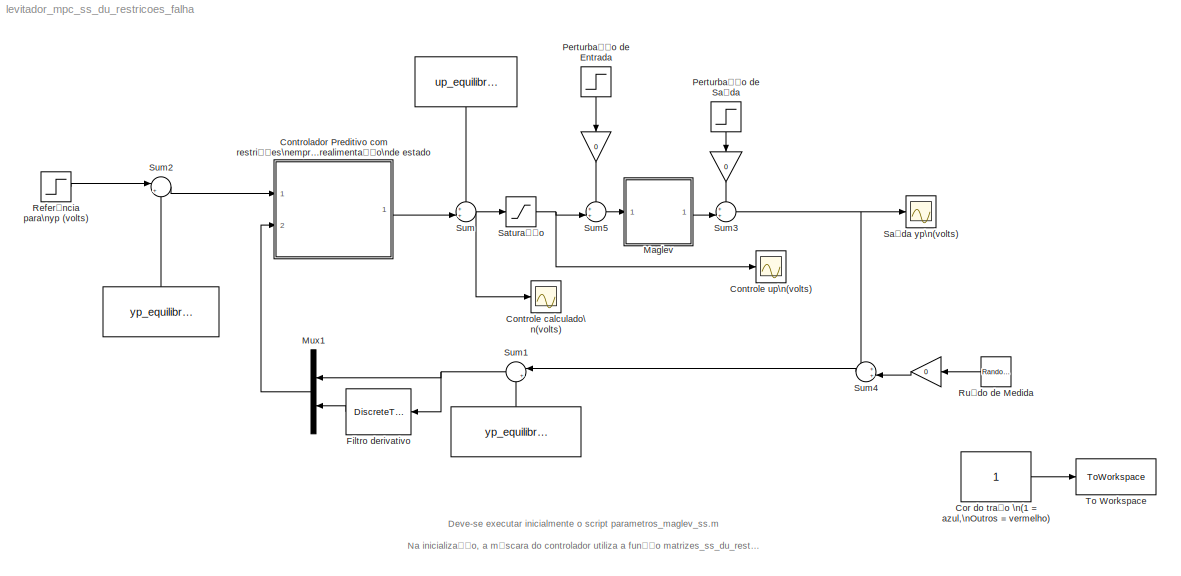
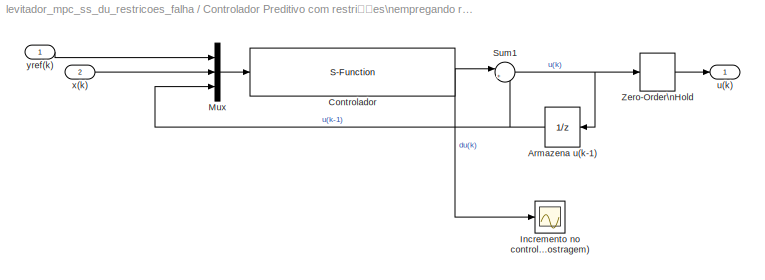
MODEL levitador_mpc_ss_du_restricoes_falha
KIND model
CONFIG StopFcn = if color == 1, color_plot = 'b';\nelse color_plot = 'r';\nend\nfigure(1)\nplot(up_calc.time,up_calc.signals.values,color_plot)\nxlabel('Tempo (s)')\nylabel('Controle u_p calculado (V)')\ngrid on\nylim([2 4])\nhold on
BLOCK [Constant]  
  SID = 42
  Value = yp_equilibrio
BLOCK [Constant]   
  SID = 43
  Value = yp_equilibrio
BLOCK [Constant]    
  SID = 41
  Value = up_equilibrio
BLOCK [Gain]      
  Gain = 0
  OutDataTypeStr = Inherit: Inherit via internal rule
  ParamDataTypeStr = Inherit: Inherit via internal rule
  SID = 62
  SaturateOnIntegerOverflow = off
BLOCK [Gain]         
  Gain = 0
  OutDataTypeStr = Inherit: Inherit via internal rule
  ParamDataTypeStr = Inherit: Inherit via internal rule
  SID = 63
  SaturateOnIntegerOverflow = off
BLOCK [Gain]          
  Gain = 0
  OutDataTypeStr = Inherit: Inherit via internal rule
  ParamDataTypeStr = Inherit: Inherit via internal rule
  SID = 64
  SaturateOnIntegerOverflow = off
BLOCK [Constant]  Cor do traço \n(1 = azul,\nOutros = vermelho)
  SID = 67
BLOCK [SubSystem] Controlador Preditivo com restrições\nempregando realimentação\nde estado
  FunctionWithSeparateData = off
  MaskCallbackString = |||||||||||
  MaskEnableString = on,on,on,on,on,on,on,on,on,on,on,on
  MaskHideContents = off
  MaskIconFrame = on
  MaskIconOpaque = on
  MaskIconRotate = none
  MaskIconUnits = autoscale
  MaskInitialization = [Phi,G,Hqp,Aqp] = matrizes_ss_du_restricoes(A,B,C,N,M,rho);\nulim = uplim - up_equilibrio;\nylim = yplim - yp_equilibrio;\numin = ulim(1);\numax = ulim(2);\ndumin = dulim(1);\ndumax = dulim(2);\nymin = ylim(1);\nymax = ylim(2);
  MaskPortRotate = default
  MaskPromptString = Peso do controle (rho)|Horizonte de Predição (N)|Horizonte de Controle (M)|Matriz A|Matriz B|Matriz C|[dumin, dumax]|[upmin, upmax]|[ypmin, ypmax]|up_equilibrio|yp_equilibrio|Periodo de amostragem
  MaskStyleString = edit,edit,edit,edit,edit,edit,edit,edit,edit,edit,edit,edit
  MaskToolTipString = on,on,on,on,on,on,on,on,on,on,on,on
  MaskTunableValueString = on,on,on,on,on,on,on,on,on,on,on,on
  MaskValueString = 1|20|10|A|B|C|[-inf, inf]|[-inf, 3.1*inf]|[-inf, inf]|up_equilibrio|yp_equilibrio|T
  MaskVariables = rho=@1;N=@2;M=@3;A=@4;B=@5;C=@6;dulim=@7;uplim=@8;yplim=@9;up_equilibrio=@10;yp_equilibrio=@11;T=@12;
  MaskVisibilityString = on,on,on,on,on,on,on,on,on,on,on,on
  MinAlgLoopOccurrences = off
  Opaque = off
  Ports = [2, 1]
  PropExecContextOutsideSubsystem = off
  RTWSystemCode = Auto
  RequestExecContextInheritance = off
  SID = 48
BLOCK [UnitDelay] Controlador Preditivo com restrições\nempregando realimentação\nde estado/Armazena u(k-1)
  SID = 51
  SampleTime = T
BLOCK [S-Function] Controlador Preditivo com restrições\nempregando realimentação\nde estado/Controlador
  EnableBusSupport = off
  FunctionName = mpc_ss_du_restricoes
  Parameters = Phi,G,Hqp,Aqp,dumax,dumin,umax,umin,ymax,ymin,M,N,T
  Ports = [1, 1]
  SID = 52
BLOCK [Scope] Controlador Preditivo com restrições\nempregando realimentação\nde estado/Incremento no controle du\n(volts//período de amostragem)
  DataFormat = StructureWithTime
  Floating = off
  NumInputPorts = 1
  Ports = [1]
  SID = 53
  ShowLegends = off
  TimeRange = 2
  YMax = 0.2
  YMin = -0.3
  ZoomMode = xonly
BLOCK [Mux] Controlador Preditivo com restrições\nempregando realimentação\nde estado/Mux
  DisplayOption = bar
  Inputs = 3
  Ports = [3, 1]
  SID = 54
BLOCK [Sum] Controlador Preditivo com restrições\nempregando realimentação\nde estado/Sum1
  IconShape = round
  Inputs = |++
  Ports = [2, 1]
  SID = 55
BLOCK [ZeroOrderHold] Controlador Preditivo com restrições\nempregando realimentação\nde estado/Zero-Order\nHold
  SID = 56
  SampleTime = T
BLOCK [Outport] Controlador Preditivo com restrições\nempregando realimentação\nde estado/u(k)
  IconDisplay = Port number
  SID = 57
BLOCK [Inport] Controlador Preditivo com restrições\nempregando realimentação\nde estado/x(k)
  IconDisplay = Port number
  Port = 2
  SID = 50
BLOCK [Inport] Controlador Preditivo com restrições\nempregando realimentação\nde estado/yref(k)
  IconDisplay = Port number
  SID = 49
BLOCK [Scope] Controle calculado\n(volts)
  DataFormat = StructureWithTime
  Floating = off
  LimitDataPoints = off
  NumInputPorts = 1
  Ports = [1]
  SID = 65
  SaveName = up_calc
  SaveToWorkspace = on
  ShowLegends = off
  TimeRange = 0.5
  YMax = 3.4
  YMin = 2
BLOCK [Scope] Controle up\n(volts)
  Floating = off
  LimitDataPoints = off
  NumInputPorts = 1
  Ports = [1]
  SID = 10
  SaveName = y1
  ShowLegends = off
  TimeRange = 0.5
  YMax = 3.4
  YMin = 2
BLOCK [DiscreteTransferFcn] Filtro derivativo
  Denominator = dend
  InputPortMap = u0
  Numerator = numd
  Ports = [1, 1]
  SID = 66
  SampleTime = T
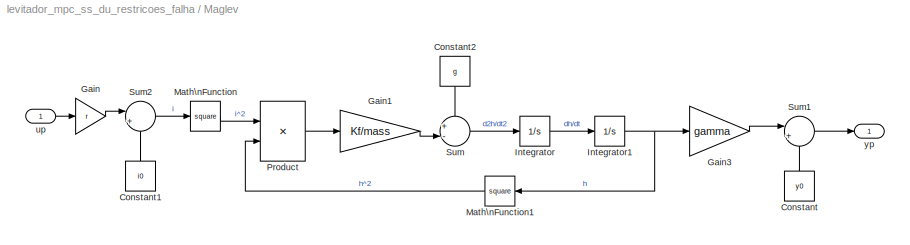
BLOCK [SubSystem] Maglev
  FunctionWithSeparateData = off
  MaskCallbackString = ||||||||
  MaskEnableString = on,on,on,on,on,on,on,on,on
  MaskHideContents = off
  MaskIconFrame = on
  MaskIconOpaque = on
  MaskIconRotate = none
  MaskIconUnits = autoscale
  MaskPortRotate = default
  MaskPromptString = mass (kg)|g (m/s^2)|y0 (V)|gamma (V/m)|i0 (A)|r (A/V)|Kf (N*m^2/A^2)|yp inicial (V)|Periodo de Amostragem (s)
  MaskStyleString = edit,edit,edit,edit,edit,edit,edit,edit,edit
  MaskToolTipString = on,on,on,on,on,on,on,on,on
  MaskTunableValueString = on,on,on,on,on,on,on,on,on
  MaskValueString = mass|g|y0|gamma|i0|r|Kf|yp_equilibrio|T
  MaskVariables = mass=@1;g=@2;y0=@3;gamma=@4;i0=@5;r=@6;Kf=@7;yp_inicial=@8;T=@9;
  MaskVisibilityString = on,on,on,on,on,on,on,on,on
  MinAlgLoopOccurrences = off
  Opaque = off
  Ports = [1, 1]
  PropExecContextOutsideSubsystem = off
  RTWSystemCode = Auto
  RequestExecContextInheritance = off
  SID = 12
BLOCK [Constant] Maglev/Constant
  SID = 14
  Value = y0
BLOCK [Constant] Maglev/Constant1
  SID = 15
  Value = i0
BLOCK [Constant] Maglev/Constant2
  SID = 16
  Value = g
BLOCK [Gain] Maglev/Gain
  Gain = r
  SID = 17
BLOCK [Gain] Maglev/Gain1
  Gain = Kf/mass
  SID = 18
BLOCK [Gain] Maglev/Gain3
  Gain = gamma
  SID = 19
BLOCK [Integrator] Maglev/Integrator
  Ports = [1, 1]
  SID = 20
BLOCK [Integrator] Maglev/Integrator1
  InitialCondition = (yp_inicial - y0)/gamma
  Ports = [1, 1]
  SID = 21
BLOCK [Math] Maglev/Math\nFunction
  Operator = square
  Ports = [1, 1]
  SID = 22
BLOCK [Math] Maglev/Math\nFunction1
  Operator = square
  Ports = [1, 1]
  SID = 23
BLOCK [Product] Maglev/Product
  InputSameDT = off
  Inputs = */
  Ports = [2, 1]
  RndMeth = Floor
  SID = 24
BLOCK [Sum] Maglev/Sum
  IconShape = round
  InputSameDT = off
  Inputs = +-|
  OutDataTypeStr = Inherit: Inherit via internal rule
  Ports = [2, 1]
  SID = 25
BLOCK [Sum] Maglev/Sum1
  IconShape = round
  InputSameDT = off
  Inputs = |++
  OutDataTypeStr = Inherit: Inherit via internal rule
  Ports = [2, 1]
  SID = 26
BLOCK [Sum] Maglev/Sum2
  IconShape = round
  InputSameDT = off
  Inputs = |++
  OutDataTypeStr = Inherit: Inherit via internal rule
  Ports = [2, 1]
  SID = 27
BLOCK [Inport] Maglev/up
  IconDisplay = Port number
  SID = 13
BLOCK [Outport] Maglev/yp
  IconDisplay = Port number
  SID = 28
BLOCK [Mux] Mux1
  DisplayOption = bar
  Inputs = 2
  Ports = [2, 1]
  SID = 46
BLOCK [Step] Perturbação de Entrada
  After = 0.1*0
  SID = 30
  SampleTime = 0
  Time = 0.2
BLOCK [Step] Perturbação de Saída
  After = 0.1*0
  SID = 31
  SampleTime = 0
  Time = 0.2
BLOCK [Step] Referência para\nyp (volts)
  After = 0.5
  SID = 32
  SampleTime = 0
  Time = 0.05
BLOCK [RandomNumber] Ruído de Medida
  SID = 33
  SampleTime = 0
  Variance = 0.0001*0
BLOCK [Saturate] Saturação
  InputPortMap = u0
  LowerLimit = -Inf
  Ports = [1, 1]
  SID = 61
  UpperLimit = 3.1
BLOCK [Scope] Saída yp\n(volts)
  Floating = off
  LimitDataPoints = off
  NumInputPorts = 1
  Ports = [1]
  SID = 34
  SaveName = y
  ShowLegends = off
  TimeRange = 0.5
  YMax = 0.7000000000000001
  YMin = 0
  ZoomMode = yonly
BLOCK [Sum] Sum
  IconShape = round
  InputSameDT = off
  Inputs = ++|
  OutDataTypeStr = Inherit: Inherit via internal rule
  Ports = [2, 1]
  SID = 35
BLOCK [Sum] Sum1
  IconShape = round
  InputSameDT = off
  Inputs = |+-
  OutDataTypeStr = Inherit: Inherit via internal rule
  Ports = [2, 1]
  SID = 36
BLOCK [Sum] Sum2
  IconShape = round
  InputSameDT = off
  Inputs = |+-
  OutDataTypeStr = Inherit: Inherit via internal rule
  Ports = [2, 1]
  SID = 37
BLOCK [Sum] Sum3
  IconShape = round
  InputSameDT = off
  Inputs = ++|
  OutDataTypeStr = Inherit: Inherit via internal rule
  Ports = [2, 1]
  SID = 38
BLOCK [Sum] Sum4
  IconShape = round
  InputSameDT = off
  Inputs = ++|
  OutDataTypeStr = Inherit: Inherit via internal rule
  Ports = [2, 1]
  SID = 39
BLOCK [Sum] Sum5
  IconShape = round
  InputSameDT = off
  Inputs = ++|
  OutDataTypeStr = Inherit: Inherit via internal rule
  Ports = [2, 1]
  SID = 40
BLOCK [ToWorkspace] To Workspace
  MaxDataPoints = inf
  Ports = [1]
  SID = 68
  SampleTime = -1
  VariableName = color
ANNOTATION (root): Deve-se executar inicialmente o script parametros_maglev_ss.m\n\nNa inicialização, a máscara do controlador utiliza a função matrizes_ss_du_restricoes.m
LINE          :1 -> Sum4:2
LINE         :1 -> Sum3:1
LINE      :1 -> Sum5:1
LINE    :1 -> Sum:1
LINE   :1 -> Sum2:2
LINE  :1 -> Sum1:2
LINE  Cor do traço \n(1 = azul,\nOutros = vermelho):1 -> To Workspace:1
NET Controlador Preditivo com restrições\nempregando realimentação\nde estado/Armazena u(k-1):1 -> Controlador Preditivo com restrições\nempregando realimentação\nde estado/Mux:3, Controlador Preditivo com restrições\nempregando realimentação\nde estado/Sum1:2
NET Controlador Preditivo com restrições\nempregando realimentação\nde estado/Controlador:1 -> Controlador Preditivo com restrições\nempregando realimentação\nde estado/Incremento no controle du\n(volts//período de amostragem):1, Controlador Preditivo com restrições\nempregando realimentação\nde estado/Sum1:1
LINE Controlador Preditivo com restrições\nempregando realimentação\nde estado/Mux:1 -> Controlador Preditivo com restrições\nempregando realimentação\nde estado/Controlador:1
NET Controlador Preditivo com restrições\nempregando realimentação\nde estado/Sum1:1 -> Controlador Preditivo com restrições\nempregando realimentação\nde estado/Armazena u(k-1):1, Controlador Preditivo com restrições\nempregando realimentação\nde estado/Zero-Order\nHold:1
LINE Controlador Preditivo com restrições\nempregando realimentação\nde estado/Zero-Order\nHold:1 -> Controlador Preditivo com restrições\nempregando realimentação\nde estado/u(k):1
LINE Controlador Preditivo com restrições\nempregando realimentação\nde estado/x(k):1 -> Controlador Preditivo com restrições\nempregando realimentação\nde estado/Mux:2
LINE Controlador Preditivo com restrições\nempregando realimentação\nde estado/yref(k):1 -> Controlador Preditivo com restrições\nempregando realimentação\nde estado/Mux:1
LINE Controlador Preditivo com restrições\nempregando realimentação\nde estado:1 -> Sum:2
LINE Filtro derivativo:1 -> Mux1:2
LINE Maglev/Constant1:1 -> Maglev/Sum2:2
LINE Maglev/Constant2:1 -> Maglev/Sum:1
LINE Maglev/Constant:1 -> Maglev/Sum1:2
LINE Maglev/Gain1:1 -> Maglev/Sum:2
LINE Maglev/Gain3:1 -> Maglev/Sum1:1
LINE Maglev/Gain:1 -> Maglev/Sum2:1
NET Maglev/Integrator1:1 -> Maglev/Gain3:1, Maglev/Math\nFunction1:1
LINE Maglev/Integrator:1 -> Maglev/Integrator1:1
LINE Maglev/Math\nFunction1:1 -> Maglev/Product:2
LINE Maglev/Math\nFunction:1 -> Maglev/Product:1
LINE Maglev/Product:1 -> Maglev/Gain1:1
LINE Maglev/Sum1:1 -> Maglev/yp:1
LINE Maglev/Sum2:1 -> Maglev/Math\nFunction:1
LINE Maglev/Sum:1 -> Maglev/Integrator:1
LINE Maglev/up:1 -> Maglev/Gain:1
LINE Maglev:1 -> Sum3:2
LINE Mux1:1 -> Controlador Preditivo com restrições\nempregando realimentação\nde estado:2
LINE Perturbação de Entrada:1 ->      :1
LINE Perturbação de Saída:1 ->         :1
LINE Referência para\nyp (volts):1 -> Sum2:1
LINE Ruído de Medida:1 ->          :1
NET Saturação:1 -> Controle up\n(volts):1, Sum5:2
NET Sum1:1 -> Filtro derivativo:1, Mux1:1
LINE Sum2:1 -> Controlador Preditivo com restrições\nempregando realimentação\nde estado:1
NET Sum3:1 -> Saída yp\n(volts):1, Sum4:1
LINE Sum4:1 -> Sum1:1
LINE Sum5:1 -> Maglev:1
NET Sum:1 -> Controle calculado\n(volts):1, Saturação:1
note: NET lines group one-source signal fan-out (src -> all destinations, sorted); 1:1 wires keep LINE
